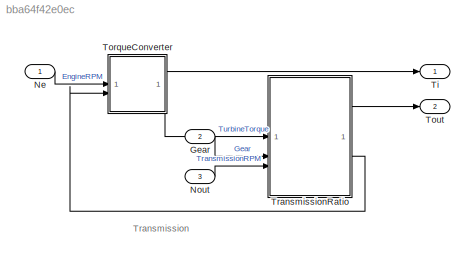
MODEL slx_bba64f42e0ec
KIND model
CONFIG AbsTol = 1e-6
CONFIG EnableMultiTasking = off
CONFIG FixedStep = auto
CONFIG MaxStep = auto
CONFIG MinStep = auto
CONFIG RelTol = 1e-3
CONFIG SampleTimeConstraint = Unconstrained
CONFIG SolverName = ode5
CONFIG StartTime = 0.0
CONFIG StopTime = 30
WORKSPACE source: mxarray member
WORKSPACE CONVERTER_DATA = [0 0.1 0.2 0.3 0.4 0.5 0.6 0.7 0.8 0.81 0.82 0.83 ... (63 elements, 21x3)]
BLOCK [Inport] Gear
  OutDataTypeStr = double
  Port = 2
  PortDimensions = 1
  SampleTime = [0.040000000000000001,0]
  SamplingMode = Sample based
  SignalType = real
  Unit = 1
BLOCK [Inport] Ne
  OutDataTypeStr = double
  PortDimensions = 1
  SampleTime = 0
  SamplingMode = Sample based
  SignalType = real
  Unit = rpm
BLOCK [Inport] Nout
  OutDataTypeStr = double
  Port = 3
  PortDimensions = 1
  SampleTime = 0
  SamplingMode = Sample based
  SignalType = real
  Unit = rpm
BLOCK [Outport] Ti
  OutDataTypeStr = double
  PortDimensions = 1
  SampleTime = 0
  SamplingMode = Sample based
  SignalType = real
  Unit = ft*lbf@torque
  VectorParamsAs1DForOutWhenUnconnected = off
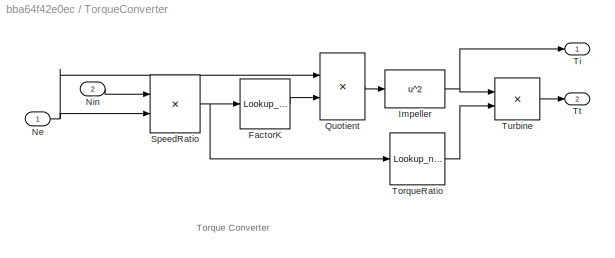
BLOCK [SubSystem] TorqueConverter
  ShowPortLabels = none
BLOCK [Lookup_n-D] TorqueConverter/FactorK
  BreakpointsForDimension1 = speedratio
  InputPortMap = u0
  NumberOfTableDimensions = 1
  SaturateOnIntegerOverflow = on
  Table = Kfactor
BLOCK [Fcn] TorqueConverter/Impeller
  Expr = u^2
BLOCK [Inport] TorqueConverter/Ne
BLOCK [Inport] TorqueConverter/Nin
  Port = 2
BLOCK [Product] TorqueConverter/Quotient
  InputSameDT = on
  Inputs = */
  OutDataTypeStr = Inherit: Same as first input
  SaturateOnIntegerOverflow = on
BLOCK [Product] TorqueConverter/SpeedRatio
  InputSameDT = on
  Inputs = */
  OutDataTypeStr = Inherit: Same as first input
  SaturateOnIntegerOverflow = on
BLOCK [Outport] TorqueConverter/Ti
  VectorParamsAs1DForOutWhenUnconnected = off
BLOCK [Lookup_n-D] TorqueConverter/TorqueRatio
  BreakpointsForDimension1 = speedratio
  InputPortMap = u0
  NumberOfTableDimensions = 1
  SaturateOnIntegerOverflow = on
  Table = Torkratio
BLOCK [Outport] TorqueConverter/Tt
  Port = 2
  VectorParamsAs1DForOutWhenUnconnected = off
BLOCK [Product] TorqueConverter/Turbine
  InputSameDT = on
  OutDataTypeStr = Inherit: Same as first input
  SaturateOnIntegerOverflow = on
BLOCK [Outport] Tout
  OutDataTypeStr = double
  Port = 2
  PortDimensions = 1
  SampleTime = 0
  SamplingMode = Sample based
  SignalType = real
  Unit = ft*lbf@torque
  VectorParamsAs1DForOutWhenUnconnected = off
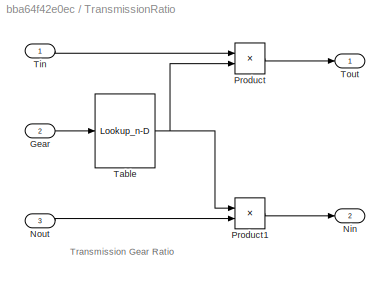
BLOCK [SubSystem] TransmissionRatio
BLOCK [Inport] TransmissionRatio/Gear
  Port = 2
  Unit = 1
BLOCK [Outport] TransmissionRatio/Nin
  Port = 2
  Unit = rpm
  VectorParamsAs1DForOutWhenUnconnected = off
BLOCK [Inport] TransmissionRatio/Nout
  Port = 3
  Unit = rpm
BLOCK [Product] TransmissionRatio/Product
  InputSameDT = on
  OutDataTypeStr = Inherit: Same as first input
  SaturateOnIntegerOverflow = on
BLOCK [Product] TransmissionRatio/Product1
  InputSameDT = on
  OutDataTypeStr = Inherit: Same as first input
  SaturateOnIntegerOverflow = on
BLOCK [Lookup_n-D] TransmissionRatio/Table
  BreakpointsForDimension1 = [1 2 3 4]
  InputPortMap = u0
  LockScale = on
  NumberOfTableDimensions = 1
  OutDataTypeStr = double
  SaturateOnIntegerOverflow = on
  Table = [2.393 1.450 1.000 0.677]
BLOCK [Inport] TransmissionRatio/Tin
  Unit = ft*lbf@torque
BLOCK [Outport] TransmissionRatio/Tout
  Unit = ft*lbf@torque
  VectorParamsAs1DForOutWhenUnconnected = off
ANNOTATION (root): Transmission
ANNOTATION TorqueConverter: Torque Converter
ANNOTATION TransmissionRatio: Transmission Gear Ratio
LINE Gear:1 -> TransmissionRatio:2
LINE Ne:1 -> TorqueConverter:1
LINE Nout:1 -> TransmissionRatio:3
LINE TorqueConverter/FactorK:1 -> TorqueConverter/Quotient:2
NET TorqueConverter/Impeller:1 -> TorqueConverter/Ti:1, TorqueConverter/Turbine:1
NET TorqueConverter/Ne:1 -> TorqueConverter/Quotient:1, TorqueConverter/SpeedRatio:2
LINE TorqueConverter/Nin:1 -> TorqueConverter/SpeedRatio:1
LINE TorqueConverter/Quotient:1 -> TorqueConverter/Impeller:1
NET TorqueConverter/SpeedRatio:1 -> TorqueConverter/FactorK:1, TorqueConverter/TorqueRatio:1
LINE TorqueConverter/TorqueRatio:1 -> TorqueConverter/Turbine:2
LINE TorqueConverter/Turbine:1 -> TorqueConverter/Tt:1
LINE TorqueConverter:1 -> Ti:1
LINE TorqueConverter:2 -> TransmissionRatio:1
LINE TransmissionRatio/Gear:1 -> TransmissionRatio/Table:1
LINE TransmissionRatio/Nout:1 -> TransmissionRatio/Product1:2
LINE TransmissionRatio/Product1:1 -> TransmissionRatio/Nin:1
LINE TransmissionRatio/Product:1 -> TransmissionRatio/Tout:1
NET TransmissionRatio/Table:1 -> TransmissionRatio/Product1:1, TransmissionRatio/Product:2
LINE TransmissionRatio/Tin:1 -> TransmissionRatio/Product:1
LINE TransmissionRatio:1 -> Tout:1
LINE TransmissionRatio:2 -> TorqueConverter:2
note: NET lines group one-source signal fan-out (src -> all destinations, sorted); 1:1 wires keep LINE
